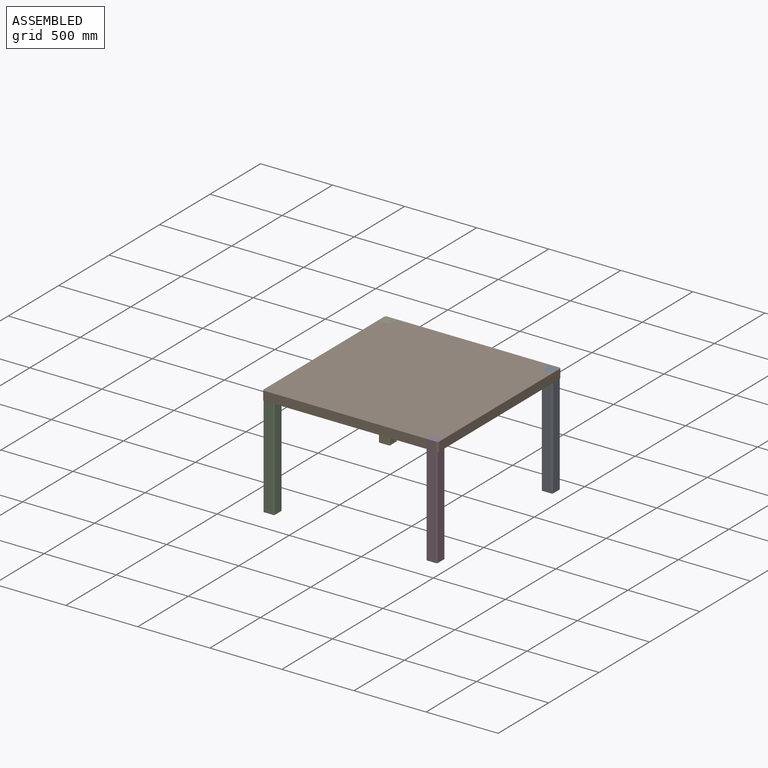
[diagram: assembled view]
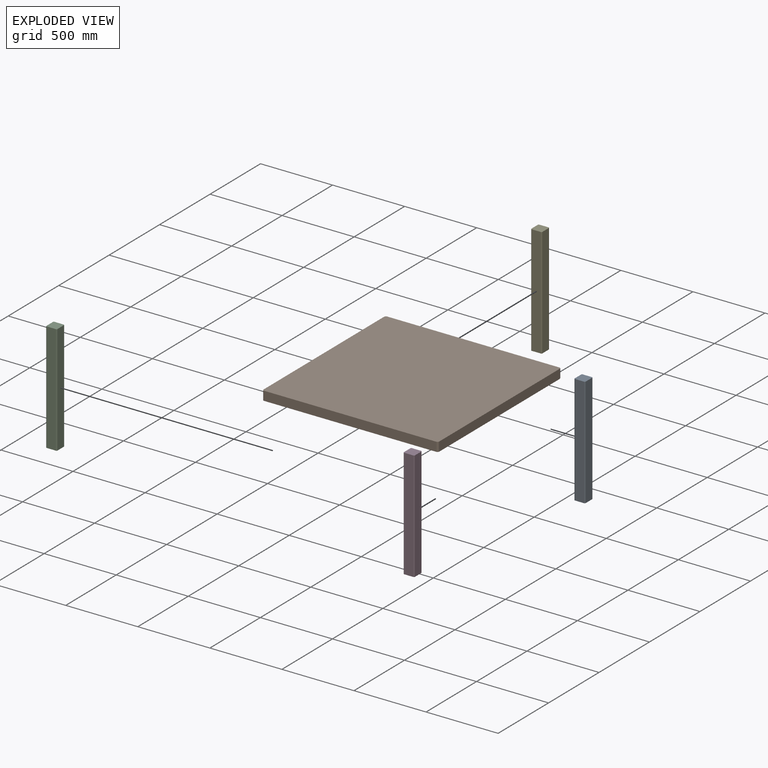
[diagram: exploded view]
GUIDED TOUR — MATED ASSEMBLY (Onshape document 61a3dae5b6ce7a6dfa1f41a1, AutoMate assembly 61a3dae5b6ce7a6dfa1f41a1_b5aab287c1efebc1985bfcaa_2e7606280a6f405dbcb42cca_default)

This assembly has 5 components, labeled P0..P4 below (a component is one placed occurrence of a part; the same part can appear more than once), held together by 4 mates. A mate is a constraint between two components; its type names the relative motion it leaves free:
  FASTENED — locks the two components together rigidly (no relative motion).
Axis/direction vectors are unit vectors and 'through' points are millimeter coordinates, both in the assembly's world frame.

MATES
  1. FASTENED "Fastened 4": P0 <-> P1, direction (0.000, 0.000, 1.000) through (596.90, 609.60, 0.00) mm
  2. FASTENED "Fastened 2": P2 <-> P1, direction (0.000, 0.000, -1.000) through (-596.90, -609.60, 0.00) mm
  3. FASTENED "Fastened 3": P3 <-> P1, direction (0.000, 0.000, -1.000) through (596.90, -609.60, 0.00) mm
  4. FASTENED "Fastened 5": P4 <-> P1, direction (0.000, 0.000, -1.000) through (-596.90, 609.60, 0.00) mm

ASSEMBLY ORDER
  1. P1 — the base component [order verified]
  2. P3 [order verified]
  3. P2 [order verified]
  4. P4 [order verified]
  5. P0 [order verified]
Order-tag legend:
  [order verified] — this step's position reverses a verified removal order: the component was checked to insert without passing through the ones already placed.

Of the 5 components, 5 carry the full construction recipe — the FeatureScript program that regenerates the part's solid from scratch; the rest are supplied as boundary geometry only.
Each toured component is shown spotlighted twice — in the assembled view, then in the exploded view, where a leader line traces a displaced component back to its assembled socket (saturated green if recipe-attached, orange if geometry-only; every other component desaturated gray) — followed by its recipe or geometry summary and the mates that hold it.
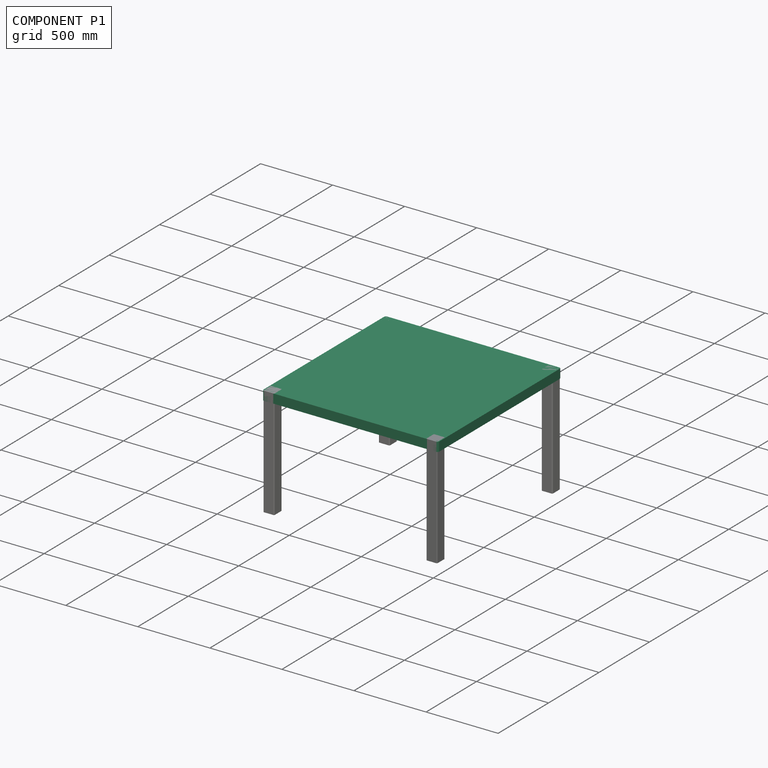
[diagram: component P1 — assembled]
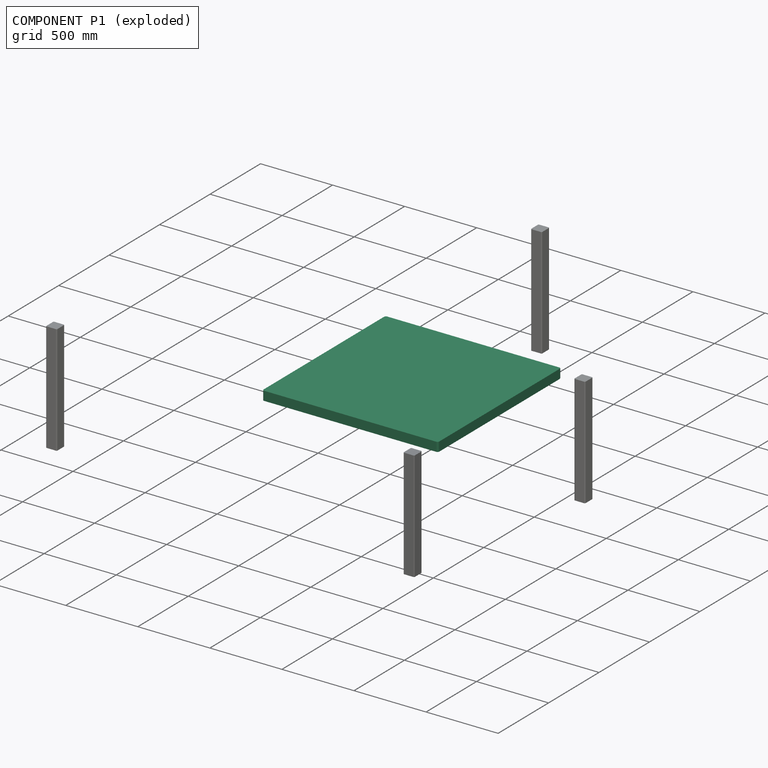
[diagram: component P1 — exploded]
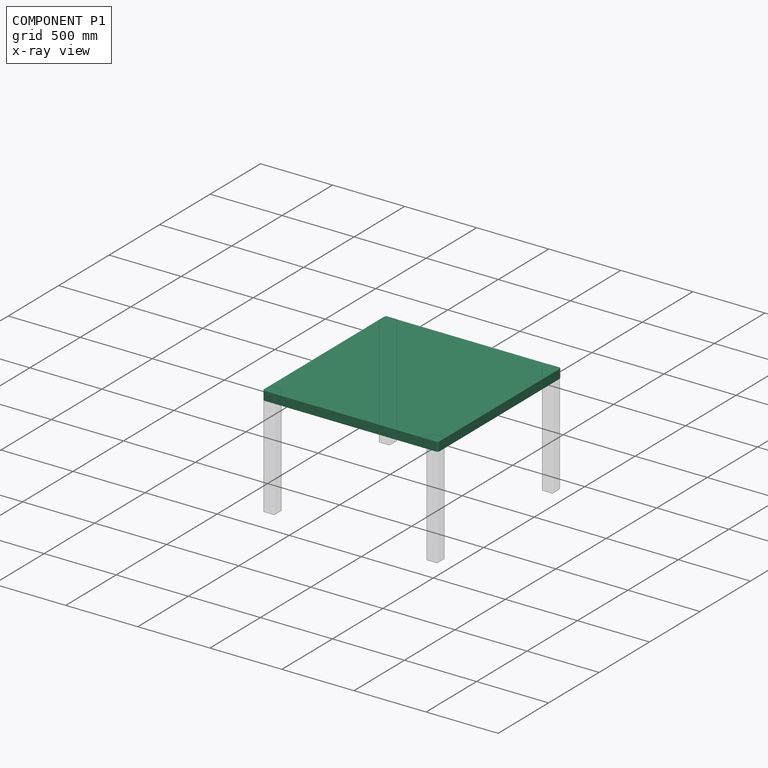
[diagram: component P1 — x-ray view]
COMPONENT P1 — recipe-attached (CADFS 00494559, mesh-verified: the recipe's output STEP matches this component's geometry to below the mesh-comparison resolution (tessellation chordal tolerance ~2.59 mm)).
Held by: FASTENED mate "Fastened 4" to P0; FASTENED mate "Fastened 2" to P2; FASTENED mate "Fastened 3" to P3; FASTENED mate "Fastened 5" to P4.
Construction recipe (FeatureScript — the CAD program that rebuilds this solid; sketch coordinates are in the units given by the * unit suffixes, e.g. mm):

FeatureScript 1511;
import(path : "onshape/std/geometry.fs", version : "1511.0");
import(path : "onshape/std/common.fs", version : "1511.0");
const mm = millimeter;
const VERTEX = EntityType.VERTEX;
const EDGE = EntityType.EDGE;
const FACE = EntityType.FACE;
const BODY = EntityType.BODY;
function v(x, y){return vector(x, y);}
function OD(order){return orderDisambiguation(order);}
function OSD(set){return originalSetDisambiguation(set);}
function TD(topology){return topologyDisambiguation(topology);}
function TDD(query){return trueDependencyDisambiguation(query);}
function sQuery(a, b, c) {return sketchEntityQuery(a, b, c);}

annotation { "Feature Type Name" : "Feature", "Feature Type Description" : "" }
export const myFeature = defineFeature(function(context is Context, id is Id, definition is map)
    precondition{}
    {
        {
            var Q0;
            Q0=qCreatedBy(makeId("Top.planeOp"),FACE);
            var sketch = newSketch(context, id + "F0", { "sketchPlane" : qUnion([Q0])});
            skLineSegment(sketch, "E0.bottom", {"start": v(596.9, 609.6) * mm, "end": v(-596.9, 609.6) * mm});
            skLineSegment(sketch, "E0.top", {"start": v(596.9, -609.6) * mm, "end": v(-596.9, -609.6) * mm});
            skLineSegment(sketch, "E0.left", {"start": v(609.6, 596.9) * mm, "end": v(609.6, -596.9) * mm});
            skLineSegment(sketch, "E0.right", {"start": v(-609.6, 596.9) * mm, "end": v(-609.6, -596.9) * mm});
            skPoint(sketch, "E0.middle", {"position": v(0, 0) * mm});
            skPoint(sketch, "E1.visualSharp", {"position": v(-609.6, 609.6) * mm});
            skArc(sketch, "E1.filletArc", {"start": v(-596.9, 609.6) * mm, "mid": v(-605.88, 605.88) * mm, "end": v(-609.6, 596.9) * mm});
            skPoint(sketch, "E2.visualSharp", {"position": v(609.6, 609.6) * mm});
            skArc(sketch, "E2.filletArc", {"start": v(609.6, 596.9) * mm, "mid": v(605.88, 605.88) * mm, "end": v(596.9, 609.6) * mm});
            skPoint(sketch, "E3.visualSharp", {"position": v(609.6, -609.6) * mm});
            skArc(sketch, "E3.filletArc", {"start": v(596.9, -609.6) * mm, "mid": v(605.88, -605.88) * mm, "end": v(609.6, -596.9) * mm});
            skPoint(sketch, "E4.visualSharp", {"position": v(-609.6, -609.6) * mm});
            skArc(sketch, "E4.filletArc", {"start": v(-609.6, -596.9) * mm, "mid": v(-605.88, -605.88) * mm, "end": v(-596.9, -609.6) * mm});
            skSolve(sketch);
        }
        {
            var Q0;
            Q0=makeQuery(id+"F0.imprint","IMPRINT",FACE,{"disambiguationData":[TD([[makeQuery(id+"F0.imprint","IMPRINT",EDGE,{"derivedFrom":sQuery(id+"F0.wireOp",EDGE,"E0.bottom")}),1.0]])]});
            extrude(context, id + "F1", {"entities" : qUnion([Q0]), "depth" : 63.5 * mm});
        }
    });
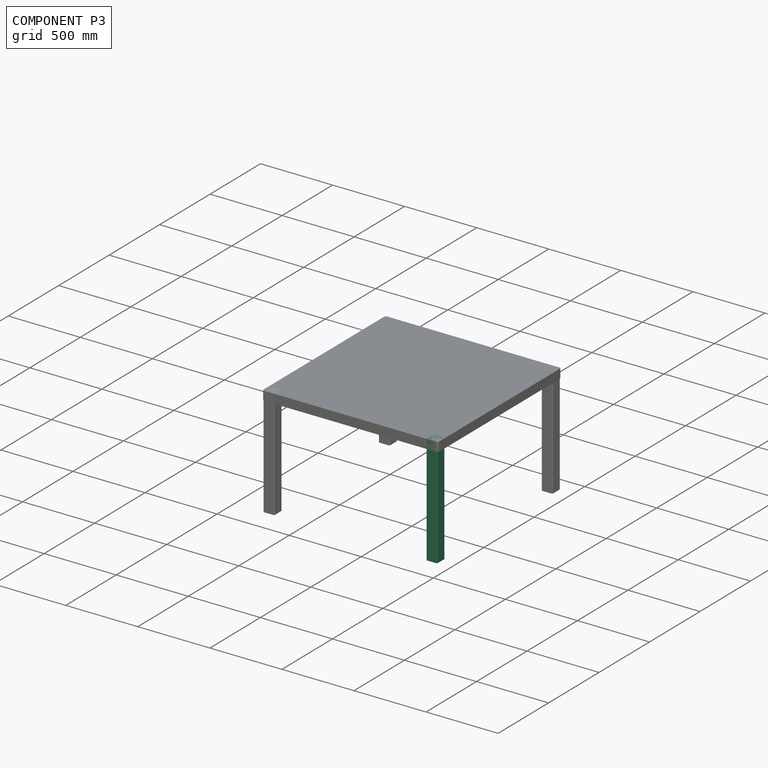
[diagram: component P3 — assembled]
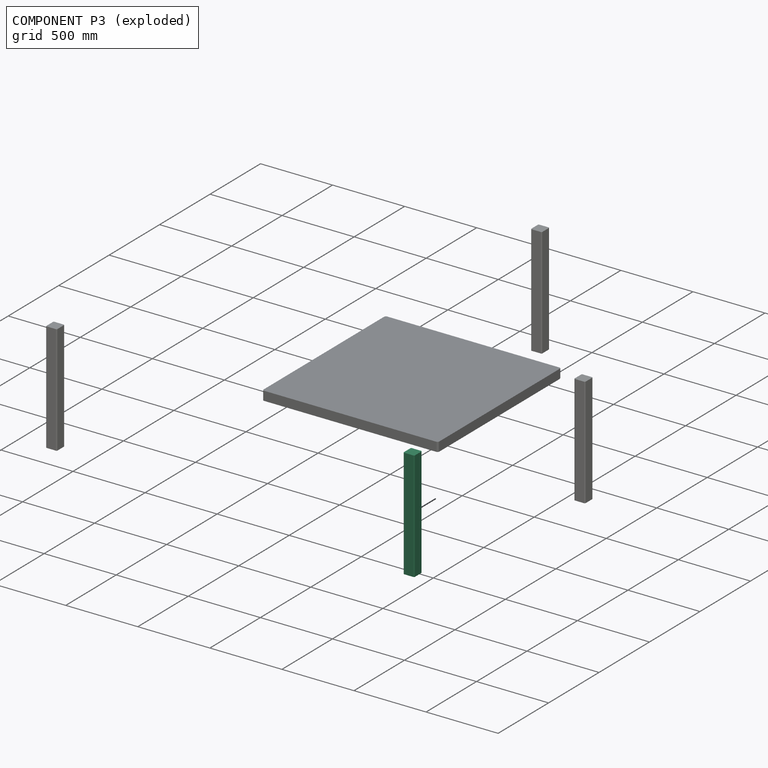
[diagram: component P3 — exploded]
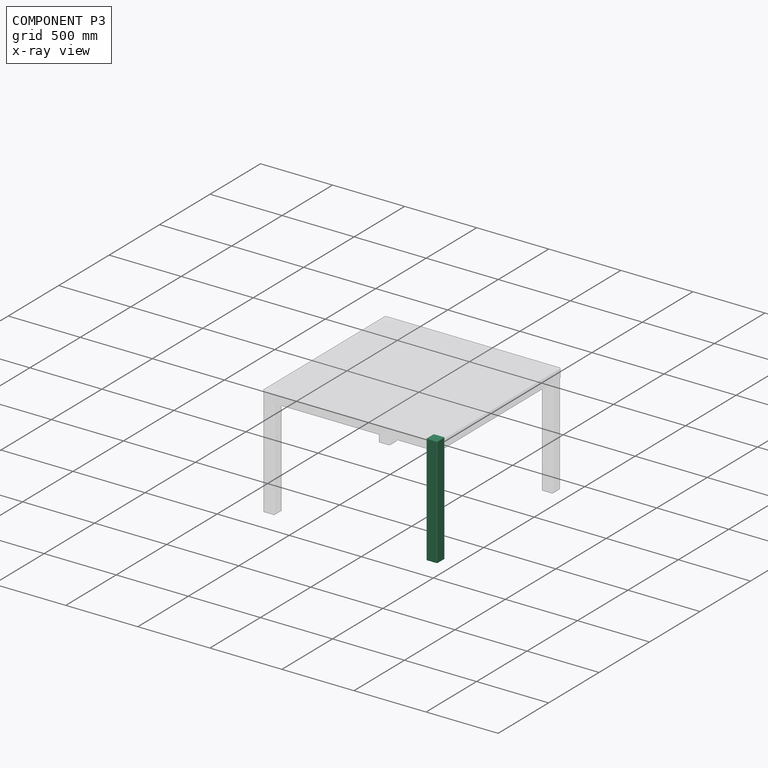
[diagram: component P3 — x-ray view]
COMPONENT P3 — same part as P0 (CADFS 00494558); its construction recipe is shown at P0.
Held by: FASTENED mate "Fastened 3" to P1.
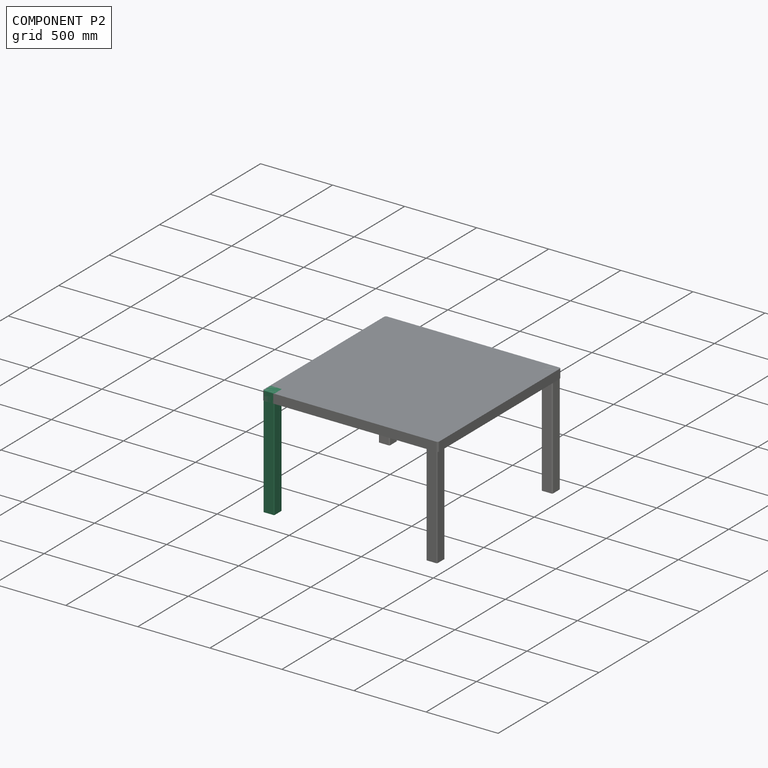
[diagram: component P2 — assembled]
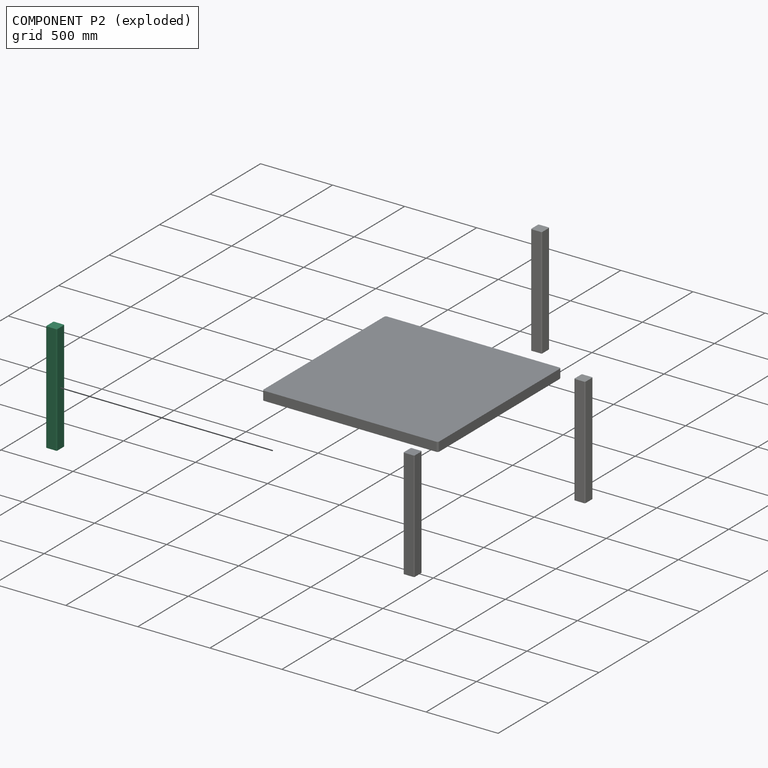
[diagram: component P2 — exploded]
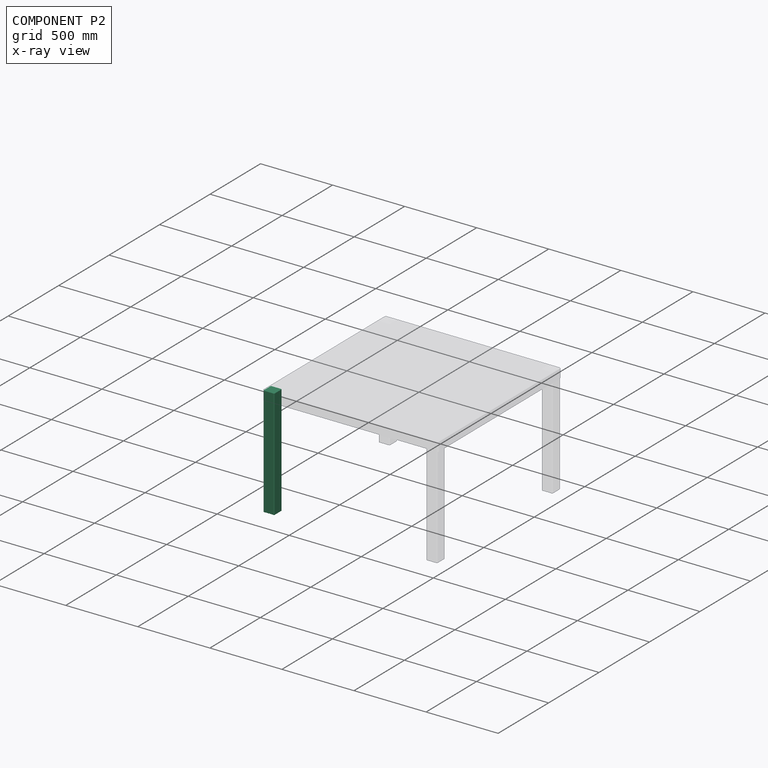
[diagram: component P2 — x-ray view]
COMPONENT P2 — same part as P0 (CADFS 00494558); its construction recipe is shown at P0.
Held by: FASTENED mate "Fastened 2" to P1.
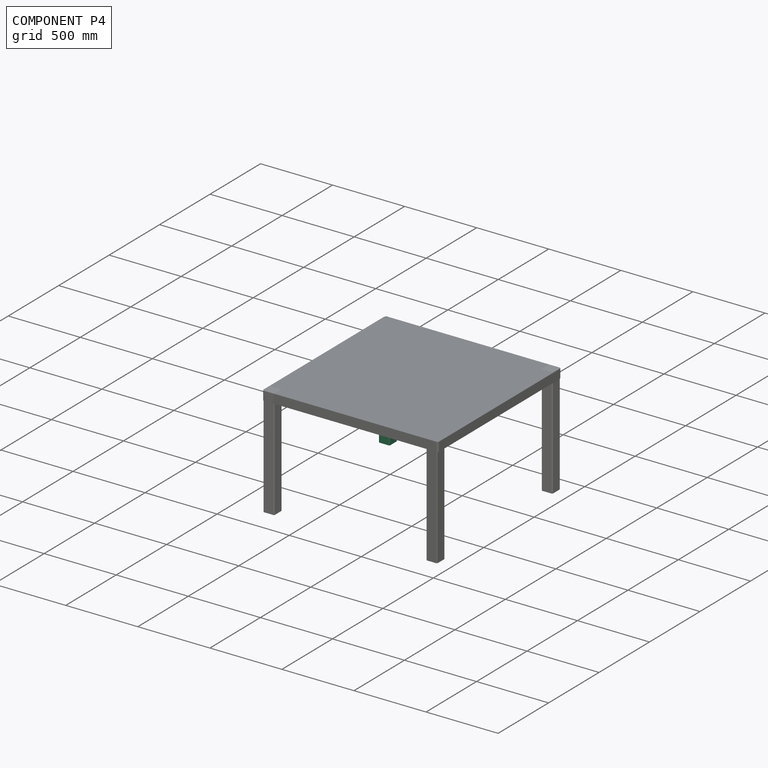
[diagram: component P4 — assembled]
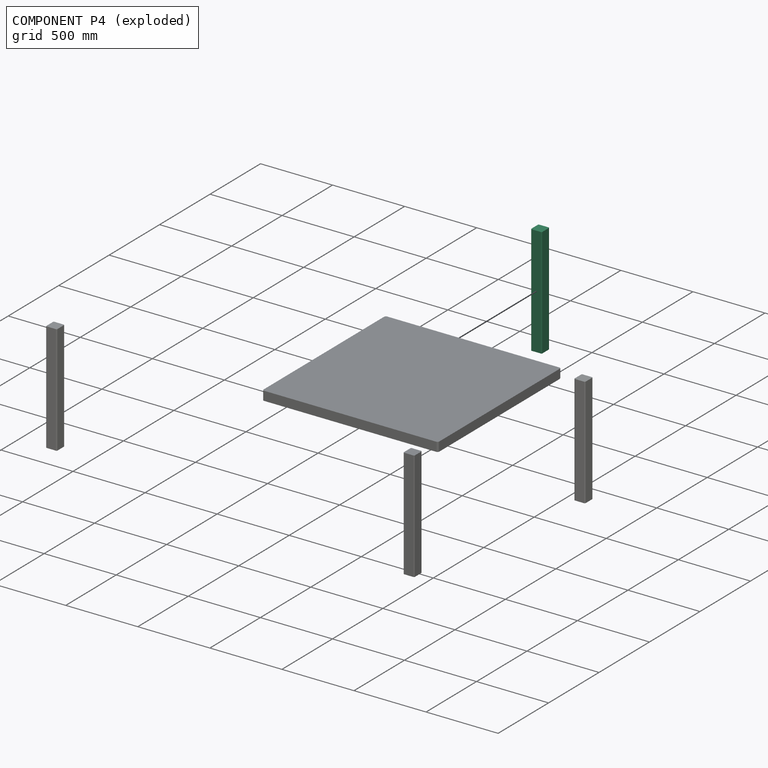
[diagram: component P4 — exploded]
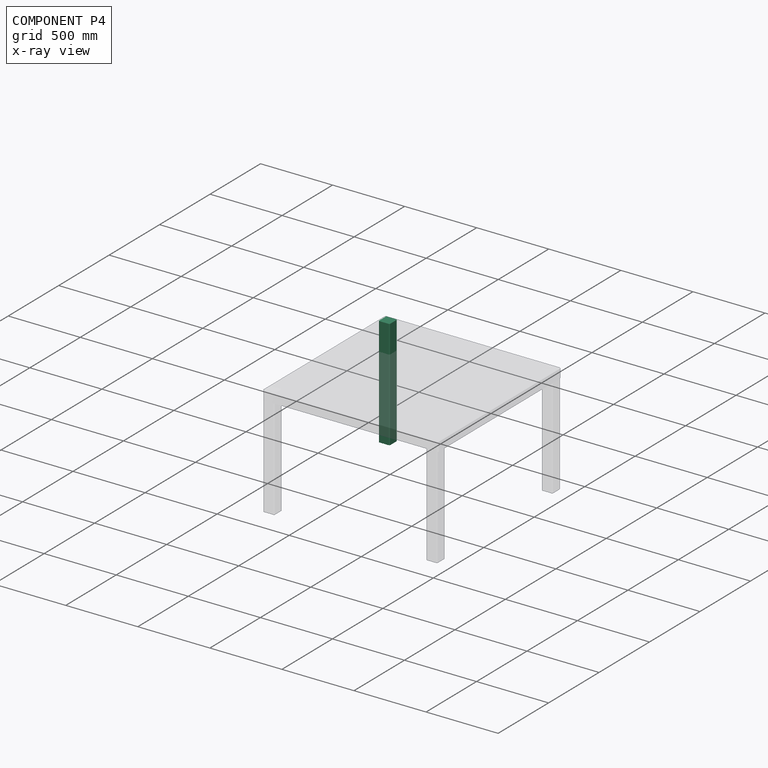
[diagram: component P4 — x-ray view]
COMPONENT P4 — same part as P0 (CADFS 00494558); its construction recipe is shown at P0.
Held by: FASTENED mate "Fastened 5" to P1.
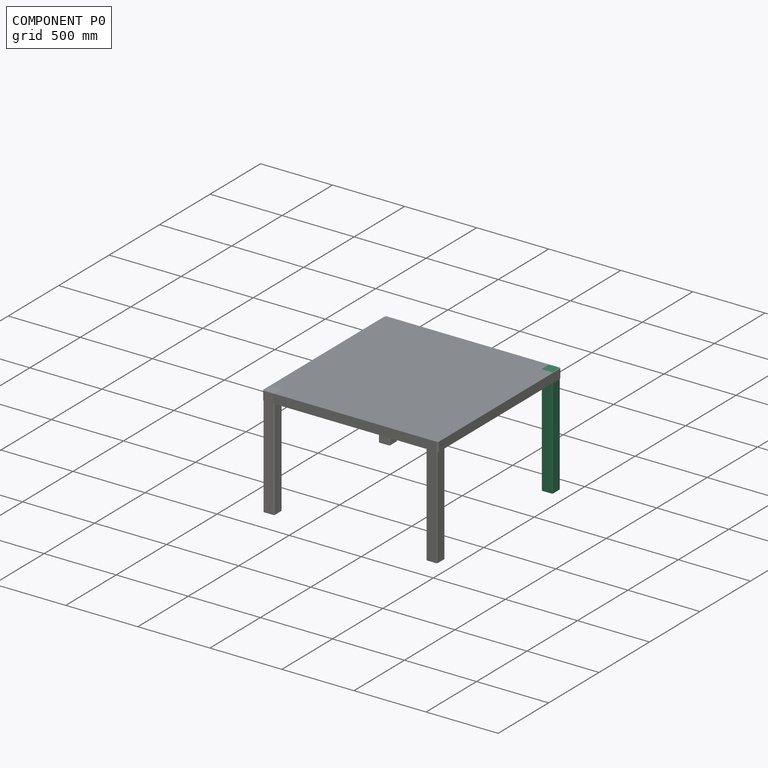
[diagram: component P0 — assembled]
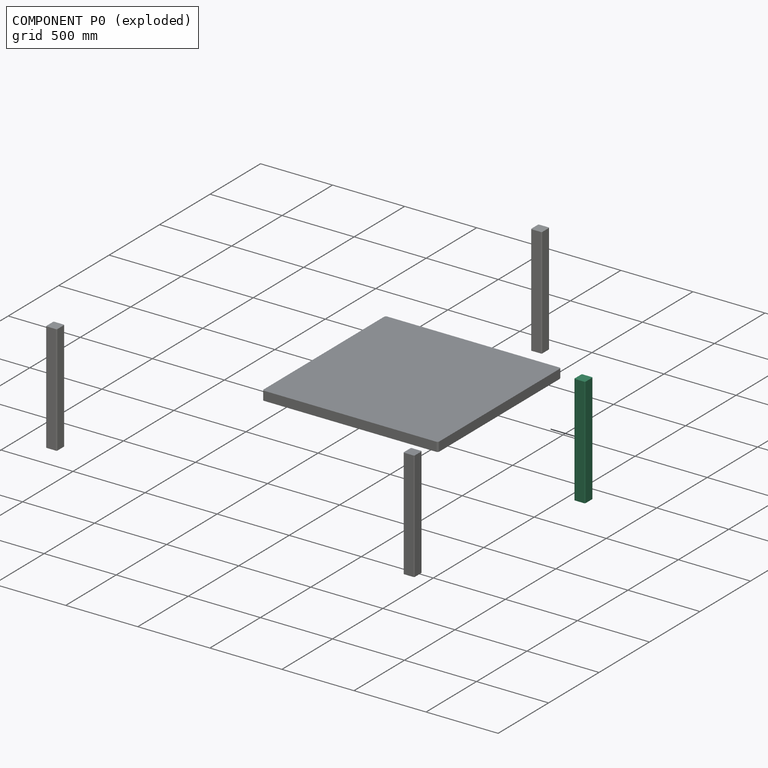
[diagram: component P0 — exploded]
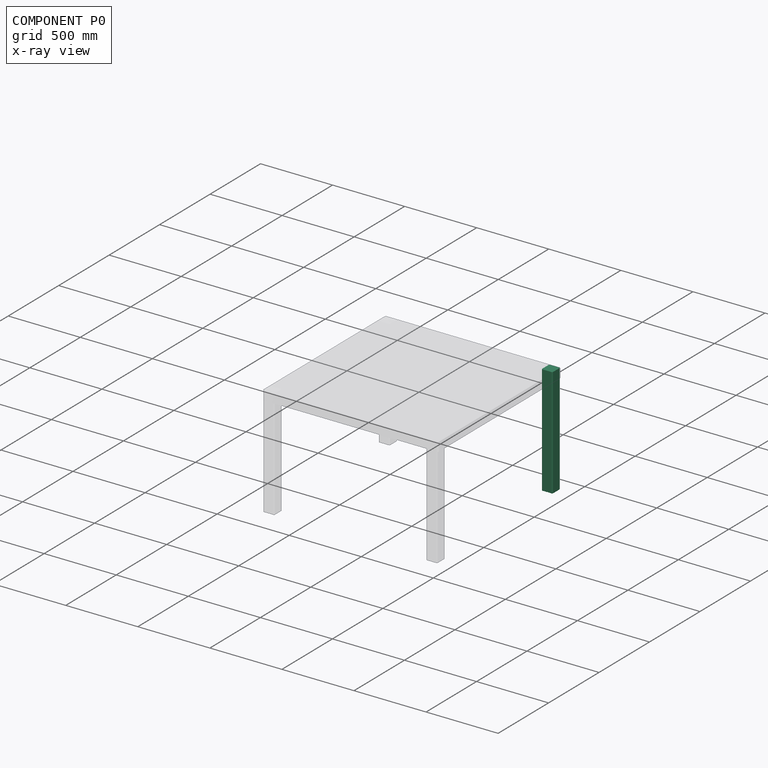
[diagram: component P0 — x-ray view]
COMPONENT P0 — recipe-attached (CADFS 00494558, mesh-verified: the recipe's output STEP matches this component's geometry to below the mesh-comparison resolution (tessellation chordal tolerance ~1.15 mm)).
Held by: FASTENED mate "Fastened 4" to P1.
Construction recipe (FeatureScript — the CAD program that rebuilds this solid; sketch coordinates are in the units given by the * unit suffixes, e.g. mm):

FeatureScript 1511;
import(path : "onshape/std/geometry.fs", version : "1511.0");
import(path : "onshape/std/common.fs", version : "1511.0");
const mm = millimeter;
const VERTEX = EntityType.VERTEX;
const EDGE = EntityType.EDGE;
const FACE = EntityType.FACE;
const BODY = EntityType.BODY;
function v(x, y){return vector(x, y);}
function OD(order){return orderDisambiguation(order);}
function OSD(set){return originalSetDisambiguation(set);}
function TD(topology){return topologyDisambiguation(topology);}
function TDD(query){return trueDependencyDisambiguation(query);}
function sQuery(a, b, c) {return sketchEntityQuery(a, b, c);}

annotation { "Feature Type Name" : "Feature", "Feature Type Description" : "" }
export const myFeature = defineFeature(function(context is Context, id is Id, definition is map)
    precondition{}
    {
        {
            var Q0;
            Q0=qCreatedBy(makeId("Top.planeOp"),FACE);
            var sketch = newSketch(context, id + "F0", { "sketchPlane" : qUnion([Q0])});
            skLineSegment(sketch, "E0.bottom", {"start": v(-6.35, 0) * mm, "end": v(-69.85, 0) * mm});
            skLineSegment(sketch, "E0.top", {"start": v(-6.35, -76.2) * mm, "end": v(-69.85, -76.2) * mm});
            skLineSegment(sketch, "E0.left", {"start": v(0, -6.35) * mm, "end": v(0, -69.85) * mm});
            skLineSegment(sketch, "E0.right", {"start": v(-76.2, -6.35) * mm, "end": v(-76.2, -69.85) * mm});
            skPoint(sketch, "E1.visualSharp", {"position": v(-76.2, -76.2) * mm});
            skArc(sketch, "E1.filletArc", {"start": v(-76.2, -69.85) * mm, "mid": v(-74.34, -74.34) * mm, "end": v(-69.85, -76.2) * mm});
            skPoint(sketch, "E2.visualSharp", {"position": v(0, -76.2) * mm});
            skArc(sketch, "E2.filletArc", {"start": v(-6.35, -76.2) * mm, "mid": v(-1.86, -74.34) * mm, "end": v(0, -69.85) * mm});
            skPoint(sketch, "E3.visualSharp", {"position": v(0, 0) * mm});
            skArc(sketch, "E3.filletArc", {"start": v(0, -6.35) * mm, "mid": v(-1.86, -1.86) * mm, "end": v(-6.35, 0) * mm});
            skPoint(sketch, "E4.visualSharp", {"position": v(-76.2, 0) * mm});
            skArc(sketch, "E4.filletArc", {"start": v(-69.85, 0) * mm, "mid": v(-74.34, -1.86) * mm, "end": v(-76.2, -6.35) * mm});
            skSolve(sketch);
        }
        {
            var Q0;
            Q0=makeQuery(id+"F0.imprint","IMPRINT",FACE,{"disambiguationData":[TD([[makeQuery(id+"F0.imprint","IMPRINT",EDGE,{"derivedFrom":sQuery(id+"F0.wireOp",EDGE,"E0.bottom")}),1.0]])]});
            extrude(context, id + "F1", {"entities" : qUnion([Q0]), "depth" : 762 * mm});
        }
    });
PROVENANCE & LICENSES
Assembly (occurrences, transforms, mates, per-part STEP geometry): AutoMate dataset, Zenodo record 7776208, CC0.
Construction recipes: CADFS (HuggingFace VladPyatov/CADFS, CC-BY-4.0, layered over the ABC dataset), FeatureScript reconstruction programs keyed by ABC model id.
Join: ABC meta listings map ABC model id -> Onshape documentId; within a shared document, parts are matched by geometric signature (bounding-box dims + volume at 0.1% relative tolerance, exact B-rep face/solid counts).
Verification: 5 of this assembly's 5 components carry a recipe attachment, and every attachment is mesh-verified: the CADFS STEP and the AutoMate member STEP were compared as meshes in their shared local frame (symmetric sampled-point-to-mesh distance); worst across the 5 attachments: below the mesh-comparison resolution (tessellation chordal tolerance ~2.59 mm) on a 1725 mm part.
Renders: orthographic iso camera (az 35 / el 25); the floor grid conveys scale (grid pitch printed in each image; no ruler). In the exploded view each component is displaced by its stored offset vector: the offsets alone carry the explosion direction (mate normal/axis signs are not orientation cues and do not encode it), and separation distances are assigned per mate-chain, not proportionally to assembly-order depth.
